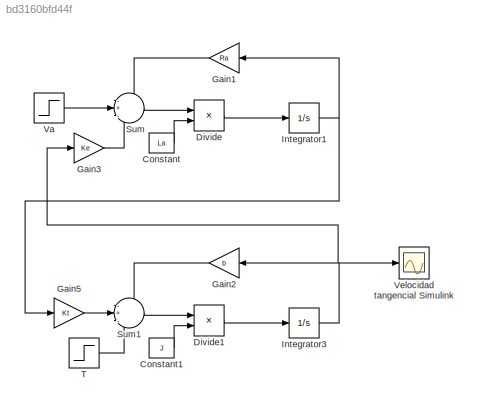
MODEL slx_bd3160bfd44f
KIND model
CONFIG AbsTol = auto
CONFIG EnableMultiTasking = off
CONFIG FixedStep = auto
CONFIG MaxStep = auto
CONFIG MinStep = auto
CONFIG RelTol = 1e-3
CONFIG SampleTimeConstraint = Unconstrained
CONFIG SolverName = VariableStepAuto
CONFIG StartTime = 0.0
CONFIG StopTime = 10.0
BLOCK [Constant] Constant
  Value = La
BLOCK [Constant] Constant1
  Value = J
BLOCK [Product] Divide
  Inputs = */
BLOCK [Product] Divide1
  Inputs = */
BLOCK [Gain] Gain1
  Gain = Ra
  NameLocation = top
BLOCK [Gain] Gain2
  Gain = b
  NameLocation = top
BLOCK [Gain] Gain3
  Gain = Ke
BLOCK [Gain] Gain5
  Gain = Kt
BLOCK [Integrator] Integrator1
BLOCK [Integrator] Integrator3
BLOCK [Sum] Sum
  Inputs = -+-
BLOCK [Sum] Sum1
  Inputs = -+-
BLOCK [Step] T
  After = 0
  SampleTime = 0
  Time = 0
BLOCK [Step] Va
  After = 5
  SampleTime = 0
  Time = 0
BLOCK [Scope] Velocidad tangencial Simulink
  Floating = off
  NumInputPorts = 1
  ScopeSpecificationString = Simulink.scopes.TimeScopeBlockCfg('CurrentConfiguration', extmgr.ConfigurationSet(extmgr.Configuration('Core','General UI',true),extmgr.Configuration('Core','Source UI',true),extmgr.Configuration('Sources','WiredSimulink',true,'DataLoggingVariableName','ScopeData1'),extmgr.Configuration('Visuals','Time Domain',true,'SerializedDisplays',{struct('MinYLimReal','-2.50002','MaxYLimReal','22.50022','YLa...<+1442ch>
LINE Constant1:1 -> Divide1:2
LINE Constant:1 -> Divide:2
LINE Divide1:1 -> Integrator3:1
LINE Divide:1 -> Integrator1:1
LINE Gain1:1 -> Sum:1
LINE Gain2:1 -> Sum1:1
LINE Gain3:1 -> Sum:3
LINE Gain5:1 -> Sum1:2
NET Integrator1:1 -> Gain1:1, Gain5:1
NET Integrator3:1 -> Gain2:1, Gain3:1, Velocidad tangencial Simulink:1
LINE Sum1:1 -> Divide1:1
LINE Sum:1 -> Divide:1
LINE T:1 -> Sum1:3
LINE Va:1 -> Sum:2
note: NET lines group one-source signal fan-out (src -> all destinations, sorted); 1:1 wires keep LINE
